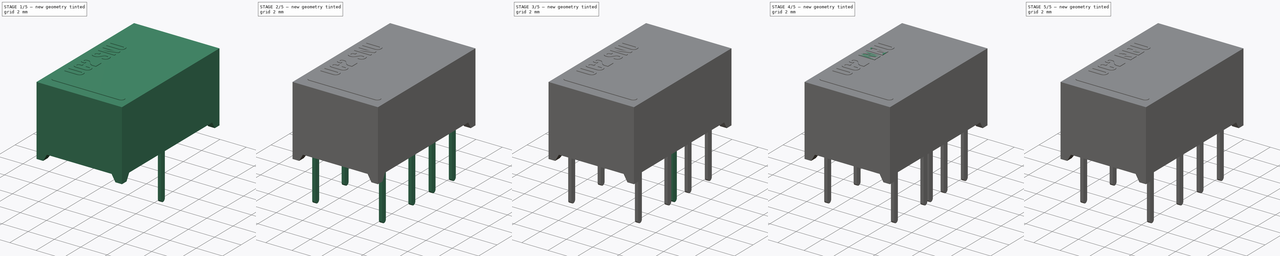
[diagram: build sequence overview — one tinted view per stage of 5, left to right]
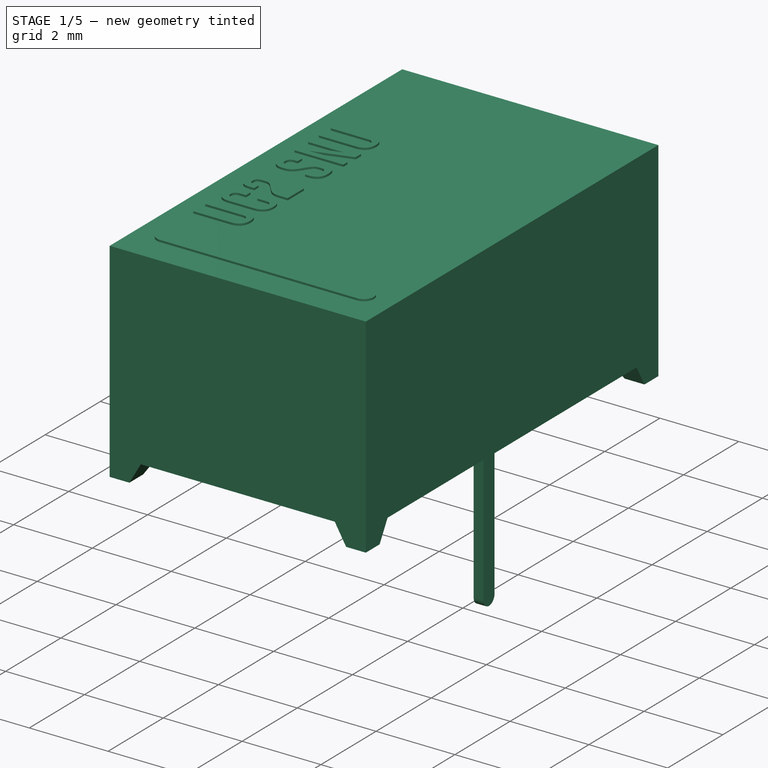
[diagram: stage 1 of 5 — iso view after this stage's code; geometry added in this stage tinted green]
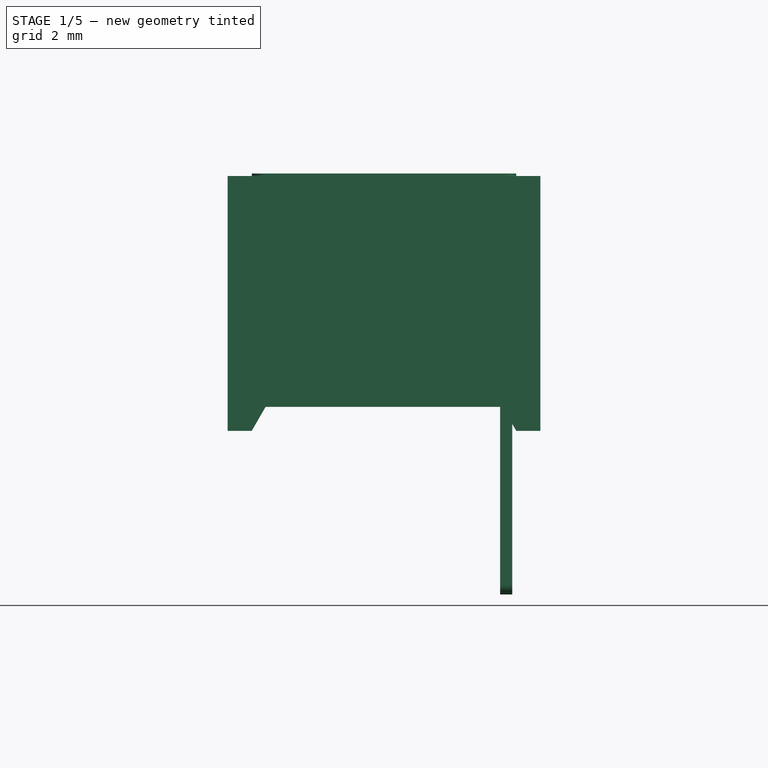
[diagram: stage 1 of 5 — front view after this stage's code; geometry added in this stage tinted green]
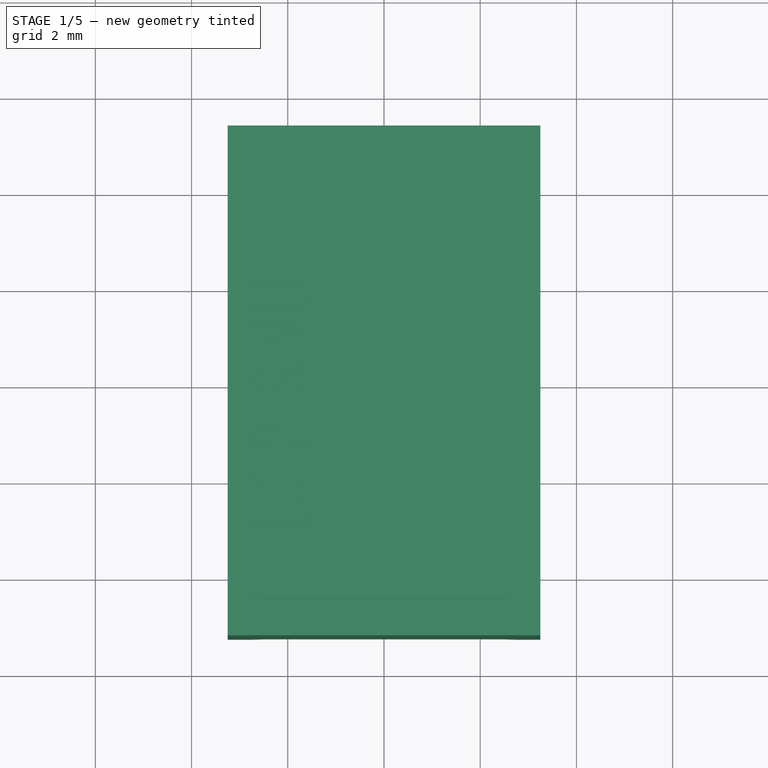
[diagram: stage 1 of 5 — top view after this stage's code; geometry added in this stage tinted green]
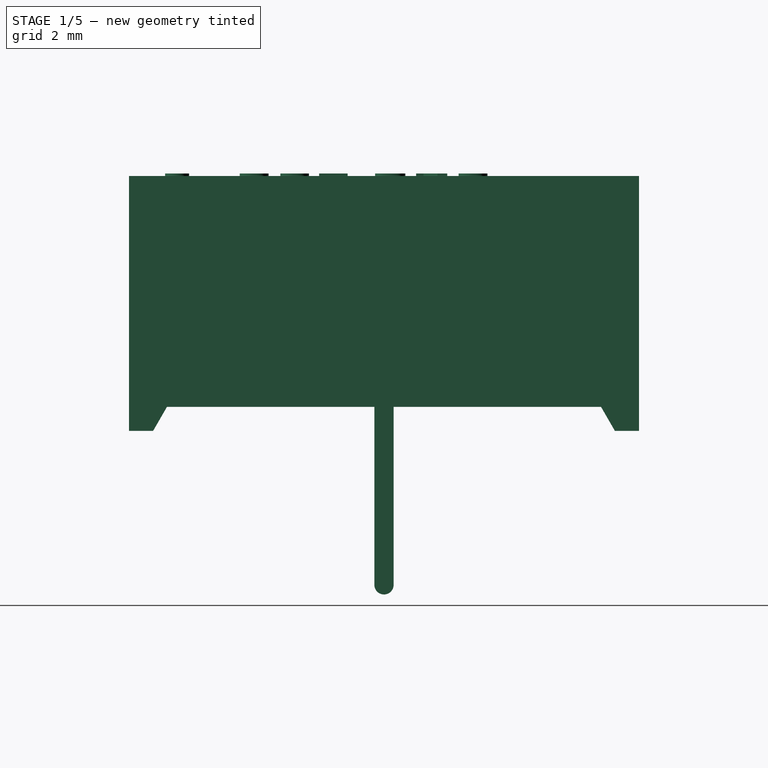
[diagram: stage 1 of 5 — right view after this stage's code; geometry added in this stage tinted green]
FCSTD DOCUMENT  (FreeCAD 0.19R16945 (Git))
Label: Kemet UC2 Series
License: All rights reserved
LicenseURL: http://en.wikipedia.org/wiki/All_rights_reserved
objects: Sketcher::SketchObject×21, PartDesign::Pad×15, PartDesign::Body×15, PartDesign::FeatureBase×12, PartDesign::Pocket×9, PartDesign::Mirrored×6, Part::FeaturePython×6, PartDesign::MultiTransform×3, Part::Part2DObjectPython×3, Part::MultiFuse×3, App::Part×3
note: 117 computed .brp shape members not serialized (recipe doc carries the construction recipe); baked Part::Feature solids carry a one-line shape summary decoded from their .brp

FEATURE [PartDesign::Body] Body005  label="UC2-NE_Body"
  Group = -> [Sketch019,Pad013,Sketch020,Pocket008,Sketch021,Pocket007,ShapeString001,Sketch025,Pocket009,MultiTransform001,Mirrored003,Mirrored002,Sketch022,Pad016,Sketch023,Pad014,Pad015]
  Origin = -> Origin008
  Tip = -> Pad015
FEATURE [App::Part] Part001  label="UC2-NE"
  Group = -> [Body005,Sketch024,Pad017,Body008,Body007,Body009,Body006,Array002,Array003,Fusion001]
  Origin = -> Origin007
FEATURE [PartDesign::Mirrored] Mirrored004
  MirrorPlane = -> YZ_Plane017
FEATURE [PartDesign::Mirrored] Mirrored005
  MirrorPlane = -> XZ_Plane015
FEATURE [Sketcher::SketchObject] Sketch026
  MapMode = 5
  Support = -> [XY_Plane016]
  sketch-geometry (4):
    g0: LineSegment StartX=3.25 StartY=-5.3 StartZ=0 EndX=-3.25 EndY=-5.3 EndZ=0
    g1: LineSegment StartX=-3.25 StartY=-5.3 StartZ=0 EndX=-3.25 EndY=5.3 EndZ=0
    g2: LineSegment StartX=-3.25 StartY=5.3 StartZ=0 EndX=3.25 EndY=5.3 EndZ=0
    g3: LineSegment StartX=3.25 StartY=5.3 StartZ=0 EndX=3.25 EndY=-5.3 EndZ=0
  constraints (10):
    c: Coincident(g0,g1)
    c: Coincident(g1,g2)
    c: Coincident(g2,g3)
    c: Coincident(g3,g0)
    c: Horizontal(g0)
    c: Vertical(g1)
    c: Symmetric(g1,g2,g-2)
    c: Symmetric(g2,g0,g-1)
    c: DistanceX(g2,g2) = 6.5
    c: DistanceY(g3,g3) = 10.6
FEATURE [PartDesign::Pad] Pad018  label="MainPad002"
  Length = 5.3
  Length2 = 100
  Profile = -> Sketch026
  Type = 0
FEATURE [Sketcher::SketchObject] Sketch029
  ExternalGeometry = -> [Pad018]
  MapMode = 5
  Placement = pos=(-3.25,0,0) rot=(0.57735,-0.57735,-0.57735;2.0944rad)
  Support = -> [Pad018]
  sketch-geometry (4):
    g0: LineSegment StartX=-4.8 StartY=0 StartZ=0 EndX=-4.51132 EndY=0.5 EndZ=0
    g1: LineSegment StartX=-4.51132 StartY=0.5 StartZ=0 EndX=4.51132 EndY=0.5 EndZ=0
    g2: LineSegment StartX=4.51132 StartY=0.5 StartZ=0 EndX=4.8 EndY=0 EndZ=0
    g3: LineSegment StartX=-4.8 StartY=0 StartZ=0 EndX=4.8 EndY=0 EndZ=0
  constraints (11):
    c: PointOnObject(g0,g-1)
    c: Coincident(g0,g1)
    c: Horizontal(g1)
    c: Coincident(g1,g2)
    c: Coincident(g3,g0)
    c: Coincident(g3,g2)
    c: DistanceY(g0,g0) = 0.5
    c: DistanceX(g-3,g0) = 0.5
    c: Symmetric(g2,g0,g-2)
    c: Angle(g3,g0) = 1.0472
    c: Equal(g2,g0)
FEATURE [PartDesign::Pocket] Pocket010  label="BottomPocket002"
  BaseFeature = -> Pad018
  Length = 5
  Length2 = 100
  Profile = -> Sketch029
  Refine = true
  Type = 1
FEATURE [Sketcher::SketchObject] Sketch030
  ExternalGeometry = -> [Pocket010]
  MapMode = 5
  Placement = pos=(0,-5.3,0) rot=(1,0,0;1.5708rad)
  Support = -> [Pocket010]
  sketch-geometry (4):
    g0: LineSegment StartX=-2.75 StartY=0 StartZ=0 EndX=-2.46132 EndY=0.5 EndZ=0
    g1: LineSegment StartX=-2.46132 StartY=0.5 StartZ=0 EndX=2.46132 EndY=0.5 EndZ=0
    g2: LineSegment StartX=2.46132 StartY=0.5 StartZ=0 EndX=2.75 EndY=0 EndZ=0
    g3: LineSegment StartX=2.75 StartY=0 StartZ=0 EndX=-2.75 EndY=0 EndZ=0
  constraints (11):
    c: PointOnObject(g0,g-1)
    c: Coincident(g0,g1)
    c: Coincident(g1,g2)
    c: Coincident(g2,g3)
    c: Coincident(g3,g0)
    c: Symmetric(g1,g0,g-2)
    c: Symmetric(g0,g2,g-2)
    c: DistanceX(g-3,g0) = 0.5
    c: Angle(g3,g0) = 1.0472
    c: Equal(g2,g0)
    c: DistanceY(g0,g0) = 0.5
FEATURE [PartDesign::Pocket] Pocket012  label="BottomSidePocket002"
  BaseFeature = -> Pocket010
  Length = 5
  Length2 = 100
  Profile = -> Sketch030
  Refine = true
  Type = 1
FEATURE [Sketcher::SketchObject] Sketch027
  ExternalGeometry = -> [Pocket012,Sketch030]
  MapMode = 5
  Placement = pos=(0,0,0.5) rot=(1,0,0;3.14159rad)
  Support = -> [Pocket012]
  sketch-geometry (6):
    g0: LineSegment StartX=0 StartY=0 StartZ=0 EndX=-3.05 EndY=0 EndZ=0
    g1: LineSegment StartX=-3.05 StartY=0 StartZ=0 EndX=-3.05 EndY=4.31132 EndZ=0
    g2: LineSegment StartX=-3.05 StartY=4.31132 StartZ=0 EndX=-2.26132 EndY=4.31132 EndZ=0
    g3: LineSegment StartX=-2.26132 StartY=4.31132 StartZ=0 EndX=-2.26132 EndY=5.1 EndZ=0
    g4: LineSegment StartX=-2.26132 StartY=5.1 StartZ=0 EndX=0 EndY=5.1 EndZ=0
    g5: LineSegment StartX=0 StartY=5.1 StartZ=0 EndX=0 EndY=0 EndZ=0
  constraints (17):
    c: Horizontal(g0)
    c: Coincident(g0,g1)
    c: Vertical(g1)
    c: Coincident(g1,g2)
    c: Coincident(g2,g3)
    c: Vertical(g3)
    c: Coincident(g3,g4)
    c: Horizontal(g4)
    c: Coincident(g4,g5)
    c: Coincident(g5,g0)
    c: Vertical(g5)
    c: Horizontal(g2)
    c: Coincident(g0,g-1)
    c: DistanceX(g-4,g0) = 0.2
    c: DistanceY(g4,g-6) = 0.2
    c: DistanceX(g-5,g3) = 0.2
    c: DistanceY(g1,g-4) = 0.2
FEATURE [PartDesign::Pocket] Pocket011
  BaseFeature = -> Pocket012
  Length = 0.1
  Length2 = 100
  Profile = -> Sketch027
  Type = 0
FEATURE [PartDesign::MultiTransform] MultiTransform002
  BaseFeature = -> Pocket011
  Originals = -> [Pocket011]
  Refine = true
  Transformations = -> [Mirrored004,Mirrored005]
FEATURE [Sketcher::SketchObject] Sketch028
  MapMode = 5
  Placement = pos=(-1e-16,-1e-16,0.6) rot=(1,0,0;3.14159rad)
  Support = -> [MultiTransform002]
  sketch-geometry (8):
    g0: LineSegment StartX=-1.13646 StartY=2.94894 StartZ=0 EndX=1.09204 EndY=2.88853 EndZ=0
    g1: LineSegment StartX=1.48768 StartY=2.48729 StartZ=0 EndX=1.5531 EndY=-2.52307 EndZ=0
    g2: LineSegment StartX=1.14644 StartY=-2.93509 StartZ=0 EndX=-1.14748 EndY=-2.93509 EndZ=0
    g3: LineSegment StartX=-1.55418 StartY=-2.52838 StartZ=0 EndX=-1.55418 EndY=2.54239 EndZ=0
    g4: ArcOfCircle CenterX=1.08102 CenterY=2.48198 CenterZ=0 NormalX=0 NormalY=0 NormalZ=1 AngleXU=0 Radius=0.406703 StartAngle=0.013056 EndAngle=1.54369
    g5: ArcOfCircle CenterX=-1.14748 CenterY=2.54239 CenterZ=0 NormalX=0 NormalY=0 NormalZ=1 AngleXU=0 Radius=0.406703 StartAngle=1.54369 EndAngle=3.14159
    g6: ArcOfCircle CenterX=-1.14748 CenterY=-2.52838 CenterZ=0 NormalX=0 NormalY=0 NormalZ=1 AngleXU=0 Radius=0.406703 StartAngle=3.14159 EndAngle=4.71239
    g7: ArcOfCircle CenterX=1.14644 CenterY=-2.52838 CenterZ=0 NormalX=0 NormalY=0 NormalZ=1 AngleXU=0 Radius=0.406703 StartAngle=4.71239 EndAngle=6.29624
  constraints (13):
    c: Horizontal(g2)
    c: Vertical(g3)
    c: Tangent(g0,g4) = 1.5708
    c: Tangent(g1,g4) = 1.5708
    c: Tangent(g0,g5) = 1.5708
    c: Tangent(g3,g5) = 1.5708
    c: Tangent(g2,g6) = 1.5708
    c: Tangent(g3,g6) = 1.5708
    c: Tangent(g1,g7) = 1.5708
    c: Tangent(g2,g7) = 1.5708
    c: Equal(g4,g5)
    c: Equal(g5,g6)
    c: Equal(g6,g7)
FEATURE [PartDesign::Pad] Pad022
  BaseFeature = -> MultiTransform002
  Length = 0.05
  Length2 = 100
  Profile = -> Sketch028
  Type = 0
FEATURE [Sketcher::SketchObject] Sketch031
  ExternalGeometry = -> [Pad022]
  MapMode = 5
  Placement = pos=(0,0,5.3) rot=(0,0,1;0rad)
  Support = -> [Pad022]
  sketch-geometry (4):
    g0: ArcOfCircle CenterX=-2.5 CenterY=-4.3 CenterZ=0 NormalX=0 NormalY=0 NormalZ=1 AngleXU=0 Radius=0.25 StartAngle=1.5708 EndAngle=4.71239
    g1: ArcOfCircle CenterX=2.5 CenterY=-4.3 CenterZ=0 NormalX=0 NormalY=0 NormalZ=1 AngleXU=0 Radius=0.25 StartAngle=4.71239 EndAngle=7.85398
    g2: LineSegment StartX=-2.5 StartY=-4.55 StartZ=0 EndX=2.5 EndY=-4.55 EndZ=0
    g3: LineSegment StartX=-2.5 StartY=-4.05 StartZ=0 EndX=2.5 EndY=-4.05 EndZ=0
  constraints (9):
    c: Tangent(g0,g3) = 1.5708
    c: Tangent(g0,g2) = -1.5708
    c: Tangent(g2,g1) = -1.5708
    c: Tangent(g3,g1) = 1.5708
    c: Horizontal(g2)
    c: Symmetric(g0,g1,g-2)
    c: DistanceY(g1,g1) = 0.5
    c: DistanceY(g-3,g1) = 1
    c: DistanceX(g1,g-3) = 0.75
FEATURE [PartDesign::Pad] Pad020
  BaseFeature = -> Pad022
  Length = 0.05
  Length2 = 100
  Profile = -> Sketch031
  Type = 0
FEATURE [Part::Part2DObjectPython] ShapeString002  # Draft 2D object (typed FeaturePython)
  AttachmentOffset = pos=(-1,-1,0) rot=(0,0,1;-1.5708rad)
  FontFile = <userpath>/Desktop/GitHub/freecad-projects/00-fonts/coolvetica condensed rg.ttf
  MapMode = 6
  Placement = pos=(-1.5,-3.05,5.3) rot=(0,0,-1;4.71239rad)
  Size = 0.75
  String = UC2 SNU
  Support = -> [Pad020]
  Tracking = 0.125
FEATURE [PartDesign::Pad] Pad019  label="ShapeStringPad002"
  BaseFeature = -> Pad020
  Length = 0.05
  Length2 = 100
  Profile = -> ShapeString002
  Type = 0
FEATURE [PartDesign::Body] Body011  label="UC2-SNU_Body"
  Group = -> [Sketch026,Pad018,Sketch029,Pocket010,Sketch030,Pocket012,ShapeString002,Sketch027,Pocket011,MultiTransform002,Mirrored004,Mirrored005,Sketch028,Pad022,Sketch031,Pad020,Pad019]
  Origin = -> Origin015
  Tip = -> Pad019
FEATURE [Sketcher::SketchObject] Sketch032
  AttachmentOffset = pos=(0,0,2.54) rot=(0,0,1;0rad)
  MapMode = 5
  Placement = pos=(2.54,-1e-15,1e-15) rot=(0.57735,0.57735,0.57735;2.0944rad)
  sketch-geometry (6):
    g0: ArcOfCircle CenterX=0 CenterY=-3.2 CenterZ=0 NormalX=0 NormalY=0 NormalZ=1 AngleXU=0 Radius=0.2 StartAngle=3.14159 EndAngle=6.28319
    g1: LineSegment StartX=-0.2 StartY=-3.2 StartZ=0 EndX=-0.2 EndY=0.5 EndZ=0
    g2: LineSegment StartX=-0.2 StartY=0.5 StartZ=0 EndX=0.2 EndY=0.5 EndZ=0
    g3: LineSegment StartX=0.2 StartY=0.5 StartZ=0 EndX=0.2 EndY=-3.2 EndZ=0
    g4: GeomPoint X=-0.2 Y=0 Z=0
    g5: GeomPoint X=0 Y=-3.4 Z=0
  constraints (16):
    c: Tangent(g0,g1) = 1.5708
    c: Coincident(g1,g2)
    c: Coincident(g2,g3)
    c: Coincident(g3,g0)
    c: Vertical(g3)
    c: Equal(g3,g1)
    c: Vertical(g1)
    c: Horizontal(g2)
    c: PointOnObject(g4,g1)
    c: PointOnObject(g4,g-1)
    c: DistanceY(g4,g1) = 0.5
    c: DistanceX(g0,g0) = 0.4
    c: PointOnObject(g5,g0)
    c: Vertical(g5,g0)
    c: DistanceY(g5,g-1) = 3.4
    c: PointOnObject(g0,g-2)
FEATURE [PartDesign::Pad] Pad021
  Length = 0.25
  Length2 = 100
  Midplane = true
  Placement = pos=(2.54,-1e-15,1e-15) rot=(0.57735,0.57735,0.57735;2.0944rad)
  Profile = -> Sketch032
  Reversed = true
  Type = 0
FEATURE [PartDesign::FeatureBase] Clone011
  BaseFeature = -> Pad021
  Placement = pos=(2.54,-1e-15,1e-15) rot=(0.57735,0.57735,0.57735;2.0944rad)
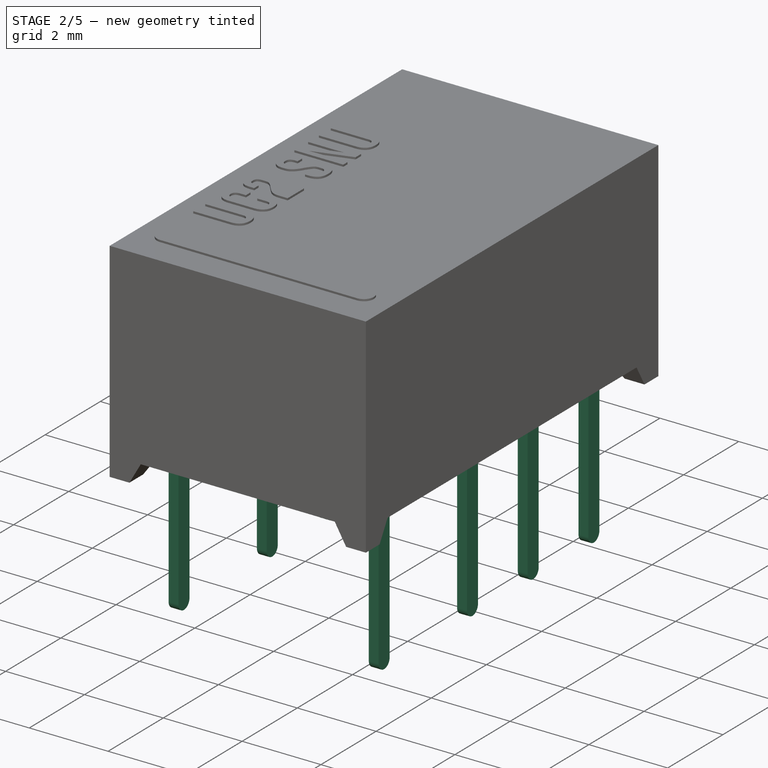
[diagram: stage 2 of 5 — iso view after this stage's code; geometry added in this stage tinted green]
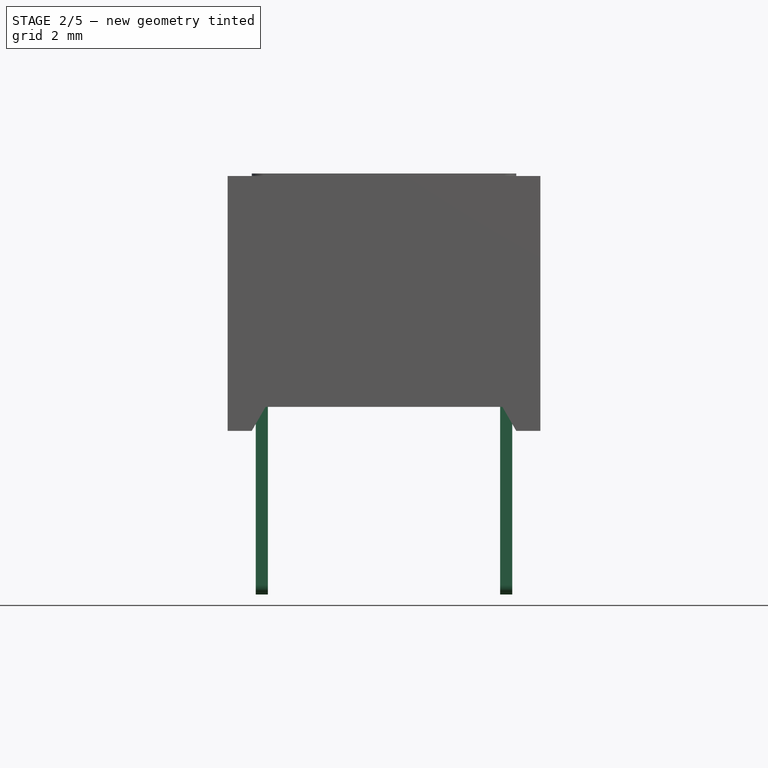
[diagram: stage 2 of 5 — front view after this stage's code; geometry added in this stage tinted green]
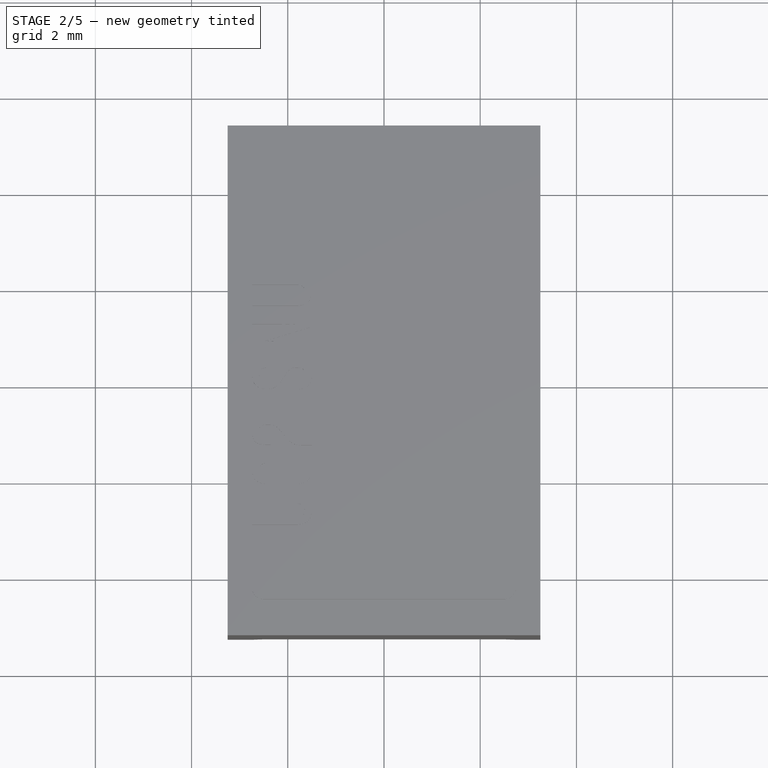
[diagram: stage 2 of 5 — top view after this stage's code; geometry added in this stage tinted green]
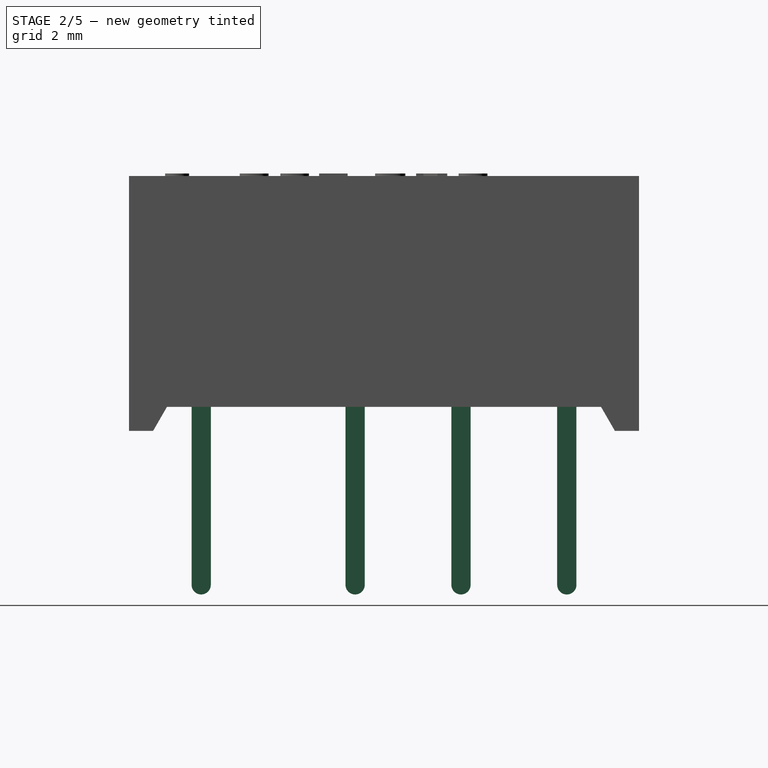
[diagram: stage 2 of 5 — right view after this stage's code; geometry added in this stage tinted green]
FEATURE [App::Part] Part  label="UC2-NU"
  Group = -> [Body,Sketch009,Pad005,Body001,Body002,Body003,Body004,Array,Array001,Fusion]
  Origin = -> Origin001
FEATURE [Sketcher::SketchObject] Sketch019
  MapMode = 5
  Support = -> [XY_Plane008]
  sketch-geometry (4):
    g0: LineSegment StartX=3.25 StartY=-5.3 StartZ=0 EndX=-3.25 EndY=-5.3 EndZ=0
    g1: LineSegment StartX=-3.25 StartY=-5.3 StartZ=0 EndX=-3.25 EndY=5.3 EndZ=0
    g2: LineSegment StartX=-3.25 StartY=5.3 StartZ=0 EndX=3.25 EndY=5.3 EndZ=0
    g3: LineSegment StartX=3.25 StartY=5.3 StartZ=0 EndX=3.25 EndY=-5.3 EndZ=0
  constraints (10):
    c: Coincident(g0,g1)
    c: Coincident(g1,g2)
    c: Coincident(g2,g3)
    c: Coincident(g3,g0)
    c: Horizontal(g0)
    c: Vertical(g1)
    c: Symmetric(g1,g2,g-2)
    c: Symmetric(g2,g0,g-1)
    c: DistanceX(g2,g2) = 6.5
    c: DistanceY(g3,g3) = 10.6
FEATURE [PartDesign::Pad] Pad013  label="MainPad001"
  Length = 5.3
  Length2 = 100
  Profile = -> Sketch019
  Type = 0
FEATURE [Sketcher::SketchObject] Sketch020
  ExternalGeometry = -> [Pad013]
  MapMode = 5
  Placement = pos=(-3.25,0,0) rot=(0.57735,-0.57735,-0.57735;2.0944rad)
  Support = -> [Pad013]
  sketch-geometry (4):
    g0: LineSegment StartX=-4.8 StartY=0 StartZ=0 EndX=-4.51132 EndY=0.5 EndZ=0
    g1: LineSegment StartX=-4.51132 StartY=0.5 StartZ=0 EndX=4.51132 EndY=0.5 EndZ=0
    g2: LineSegment StartX=4.51132 StartY=0.5 StartZ=0 EndX=4.8 EndY=0 EndZ=0
    g3: LineSegment StartX=-4.8 StartY=0 StartZ=0 EndX=4.8 EndY=0 EndZ=0
  constraints (11):
    c: PointOnObject(g0,g-1)
    c: Coincident(g0,g1)
    c: Horizontal(g1)
    c: Coincident(g1,g2)
    c: Coincident(g3,g0)
    c: Coincident(g3,g2)
    c: DistanceY(g0,g0) = 0.5
    c: DistanceX(g-3,g0) = 0.5
    c: Symmetric(g2,g0,g-2)
    c: Angle(g3,g0) = 1.0472
    c: Equal(g2,g0)
FEATURE [PartDesign::Pocket] Pocket008  label="BottomPocket001"
  BaseFeature = -> Pad013
  Length = 5
  Length2 = 100
  Profile = -> Sketch020
  Refine = true
  Type = 1
FEATURE [Sketcher::SketchObject] Sketch021
  ExternalGeometry = -> [Pocket008]
  MapMode = 5
  Placement = pos=(0,-5.3,0) rot=(1,0,0;1.5708rad)
  Support = -> [Pocket008]
  sketch-geometry (4):
    g0: LineSegment StartX=-2.75 StartY=0 StartZ=0 EndX=-2.46132 EndY=0.5 EndZ=0
    g1: LineSegment StartX=-2.46132 StartY=0.5 StartZ=0 EndX=2.46132 EndY=0.5 EndZ=0
    g2: LineSegment StartX=2.46132 StartY=0.5 StartZ=0 EndX=2.75 EndY=0 EndZ=0
    g3: LineSegment StartX=2.75 StartY=0 StartZ=0 EndX=-2.75 EndY=0 EndZ=0
  constraints (11):
    c: PointOnObject(g0,g-1)
    c: Coincident(g0,g1)
    c: Coincident(g1,g2)
    c: Coincident(g2,g3)
    c: Coincident(g3,g0)
    c: Symmetric(g1,g0,g-2)
    c: Symmetric(g0,g2,g-2)
    c: DistanceX(g-3,g0) = 0.5
    c: Angle(g3,g0) = 1.0472
    c: Equal(g2,g0)
    c: DistanceY(g0,g0) = 0.5
FEATURE [PartDesign::Pocket] Pocket007  label="BottomSidePocket001"
  BaseFeature = -> Pocket008
  Length = 5
  Length2 = 100
  Profile = -> Sketch021
  Refine = true
  Type = 1
FEATURE [PartDesign::FeatureBase] Clone008
  BaseFeature = -> Pad021
  Placement = pos=(2.54,-1e-15,1e-15) rot=(0.57735,0.57735,0.57735;2.0944rad)
FEATURE [PartDesign::Body] Body013
  BaseFeature = -> Pad021
  Group = -> [Clone008]
  Origin = -> Origin012
  Placement = pos=(-5.08,-3.8,0) rot=(0,0,1;0rad)
  Tip = -> Clone008
FEATURE [PartDesign::FeatureBase] Clone009
  BaseFeature = -> Pad021
  Placement = pos=(2.54,-1e-15,1e-15) rot=(0.57735,0.57735,0.57735;2.0944rad)
FEATURE [PartDesign::Body] Body012
  BaseFeature = -> Pad021
  Group = -> [Clone009]
  Origin = -> Origin014
  Placement = pos=(-5.08,-0.6,0) rot=(0,0,1;0rad)
  Tip = -> Clone009
FEATURE [Part::FeaturePython] Array005  # Draft array (typed FeaturePython)
  Angle = 360
  ArrayType = 0
  Axis = (0,0,1)
  Base = -> Body012
  Center = (0,0,0)
  Fuse = false
  IntervalAxis = (0,0,0)
  IntervalX = (1,0,0)
  IntervalY = (0,2.2,0)
  IntervalZ = (0,0,1)
  NumberPolar = 1
  NumberX = 1
  NumberY = 3
  NumberZ = 1
FEATURE [PartDesign::FeatureBase] Clone010
  BaseFeature = -> Pad021
  Placement = pos=(2.54,-1e-15,1e-15) rot=(0.57735,0.57735,0.57735;2.0944rad)
FEATURE [PartDesign::Body] Body014
  BaseFeature = -> Pad021
  Group = -> [Clone010]
  Origin = -> Origin013
  Placement = pos=(0,-0.6,0) rot=(0,0,1;0rad)
  Tip = -> Clone010
FEATURE [Part::FeaturePython] Array004  # Draft array (typed FeaturePython)
  Angle = 360
  ArrayType = 0
  Axis = (0,0,1)
  Base = -> Body014
  Center = (0,0,0)
  Fuse = false
  IntervalAxis = (0,0,0)
  IntervalX = (1,0,0)
  IntervalY = (0,2.2,0)
  IntervalZ = (0,0,1)
  NumberPolar = 1
  NumberX = 1
  NumberY = 3
  NumberZ = 1
FEATURE [PartDesign::Body] Body010
  BaseFeature = -> Pad021
  Group = -> [Clone011]
  Origin = -> Origin016
  Placement = pos=(0,-3.8,0) rot=(0,0,1;0rad)
  Tip = -> Clone011
FEATURE [Part::MultiFuse] Fusion002  label="UC2-SNU_Pins"
  Shapes = -> [Array005,Body013,Array004,Body010]
FEATURE [App::Part] Part002  label="UC2-SNU"
  Group = -> [Body011,Sketch032,Pad021,Body010,Body013,Body014,Body012,Array004,Array005,Fusion002]
  Origin = -> Origin017
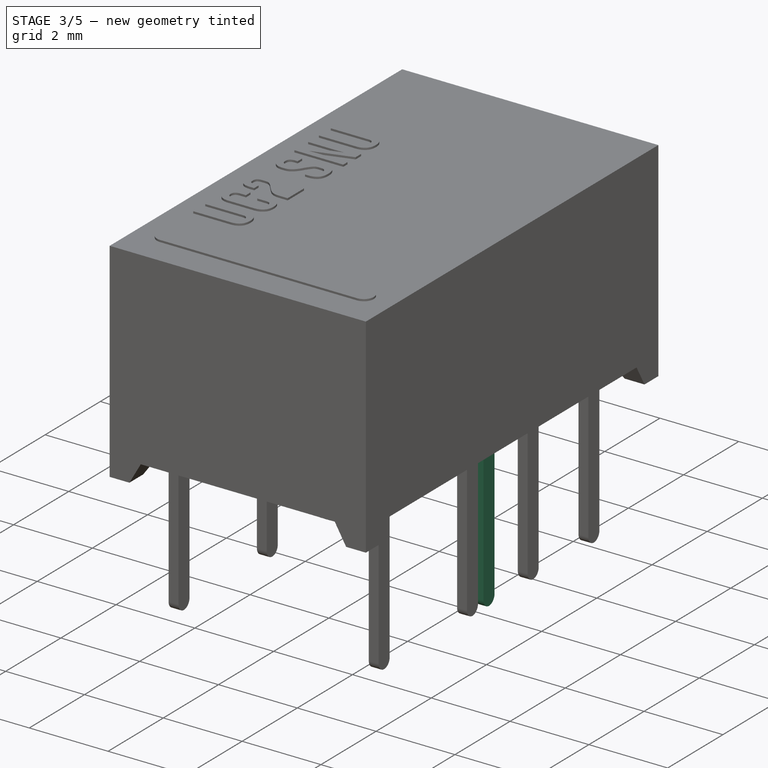
[diagram: stage 3 of 5 — iso view after this stage's code; geometry added in this stage tinted green]
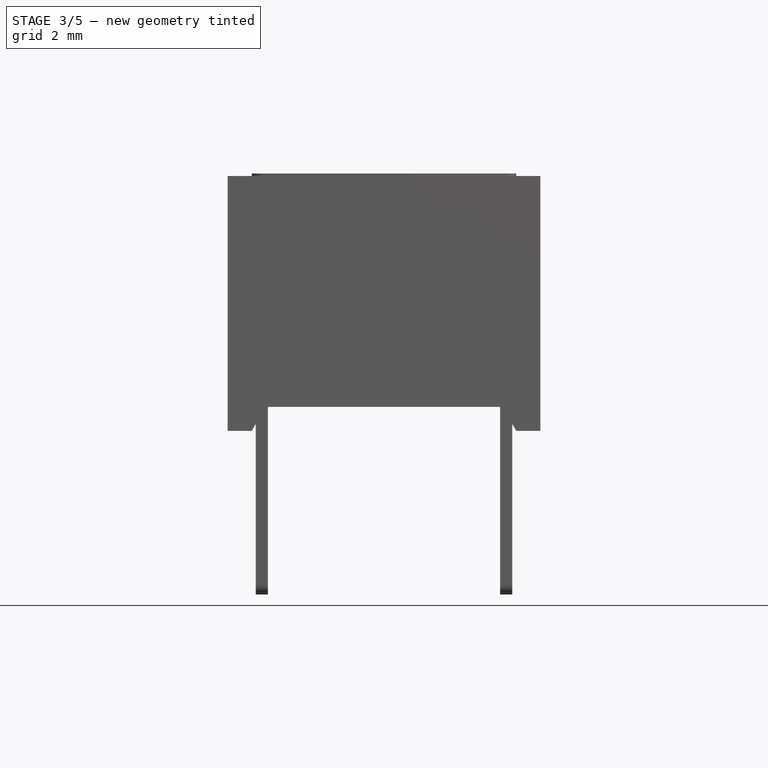
[diagram: stage 3 of 5 — front view after this stage's code; geometry added in this stage tinted green]
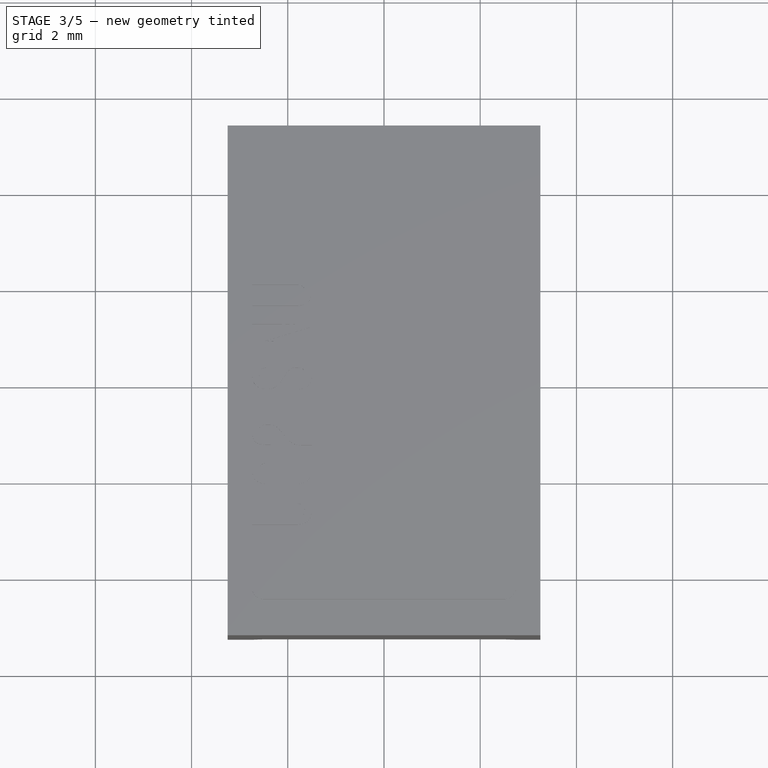
[diagram: stage 3 of 5 — top view after this stage's code; geometry added in this stage tinted green]
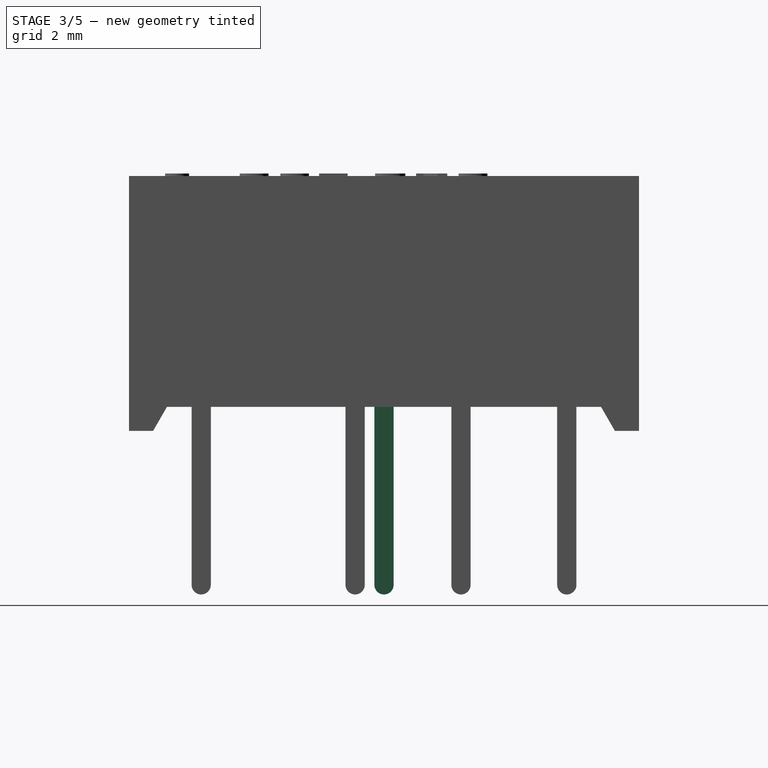
[diagram: stage 3 of 5 — right view after this stage's code; geometry added in this stage tinted green]
FEATURE [Sketcher::SketchObject] Sketch024
  AttachmentOffset = pos=(0,0,2.54) rot=(0,0,1;0rad)
  MapMode = 5
  Placement = pos=(2.54,-1e-15,1e-15) rot=(0.57735,0.57735,0.57735;2.0944rad)
  sketch-geometry (6):
    g0: ArcOfCircle CenterX=0 CenterY=-3.2 CenterZ=0 NormalX=0 NormalY=0 NormalZ=1 AngleXU=0 Radius=0.2 StartAngle=3.14159 EndAngle=6.28319
    g1: LineSegment StartX=-0.2 StartY=-3.2 StartZ=0 EndX=-0.2 EndY=0.5 EndZ=0
    g2: LineSegment StartX=-0.2 StartY=0.5 StartZ=0 EndX=0.2 EndY=0.5 EndZ=0
    g3: LineSegment StartX=0.2 StartY=0.5 StartZ=0 EndX=0.2 EndY=-3.2 EndZ=0
    g4: GeomPoint X=-0.2 Y=0 Z=0
    g5: GeomPoint X=0 Y=-3.4 Z=0
  constraints (16):
    c: Tangent(g0,g1) = 1.5708
    c: Coincident(g1,g2)
    c: Coincident(g2,g3)
    c: Coincident(g3,g0)
    c: Vertical(g3)
    c: Equal(g3,g1)
    c: Vertical(g1)
    c: Horizontal(g2)
    c: PointOnObject(g4,g1)
    c: PointOnObject(g4,g-1)
    c: DistanceY(g4,g1) = 0.5
    c: DistanceX(g0,g0) = 0.4
    c: PointOnObject(g5,g0)
    c: Vertical(g5,g0)
    c: DistanceY(g5,g-1) = 3.4
    c: PointOnObject(g0,g-2)
FEATURE [PartDesign::Pad] Pad017
  Length = 0.25
  Length2 = 100
  Midplane = true
  Placement = pos=(2.54,-1e-15,1e-15) rot=(0.57735,0.57735,0.57735;2.0944rad)
  Profile = -> Sketch024
  Reversed = true
  Type = 0
FEATURE [PartDesign::FeatureBase] Clone004
  BaseFeature = -> Pad017
  Placement = pos=(2.54,-1e-15,1e-15) rot=(0.57735,0.57735,0.57735;2.0944rad)
FEATURE [PartDesign::FeatureBase] Clone005
  BaseFeature = -> Pad017
  Placement = pos=(2.54,-1e-15,1e-15) rot=(0.57735,0.57735,0.57735;2.0944rad)
FEATURE [PartDesign::FeatureBase] Clone006
  BaseFeature = -> Pad017
  Placement = pos=(2.54,-1e-15,1e-15) rot=(0.57735,0.57735,0.57735;2.0944rad)
FEATURE [PartDesign::Body] Body006
  BaseFeature = -> Pad017
  Group = -> [Clone006]
  Origin = -> Origin010
  Placement = pos=(-5.08,-0.6,0) rot=(0,0,1;0rad)
  Tip = -> Clone006
FEATURE [Part::FeaturePython] Array003  # Draft array (typed FeaturePython)
  Angle = 360
  ArrayType = 0
  Axis = (0,0,1)
  Base = -> Body006
  Center = (0,0,0)
  Fuse = false
  IntervalAxis = (0,0,0)
  IntervalX = (1,0,0)
  IntervalY = (0,2.2,0)
  IntervalZ = (0,0,1)
  NumberPolar = 1
  NumberX = 1
  NumberY = 3
  NumberZ = 1
FEATURE [PartDesign::FeatureBase] Clone007
  BaseFeature = -> Pad017
  Placement = pos=(2.54,-1e-15,1e-15) rot=(0.57735,0.57735,0.57735;2.0944rad)
FEATURE [Sketcher::SketchObject] Sketch025
  ExternalGeometry = -> [Pocket007,Sketch021]
  MapMode = 5
  Placement = pos=(0,0,0.5) rot=(1,0,0;3.14159rad)
  Support = -> [Pocket007]
  sketch-geometry (6):
    g0: LineSegment StartX=0 StartY=0 StartZ=0 EndX=-3.05 EndY=0 EndZ=0
    g1: LineSegment StartX=-3.05 StartY=0 StartZ=0 EndX=-3.05 EndY=4.31132 EndZ=0
    g2: LineSegment StartX=-3.05 StartY=4.31132 StartZ=0 EndX=-2.26132 EndY=4.31132 EndZ=0
    g3: LineSegment StartX=-2.26132 StartY=4.31132 StartZ=0 EndX=-2.26132 EndY=5.1 EndZ=0
    g4: LineSegment StartX=-2.26132 StartY=5.1 StartZ=0 EndX=0 EndY=5.1 EndZ=0
    g5: LineSegment StartX=0 StartY=5.1 StartZ=0 EndX=0 EndY=0 EndZ=0
  constraints (17):
    c: Horizontal(g0)
    c: Coincident(g0,g1)
    c: Vertical(g1)
    c: Coincident(g1,g2)
    c: Coincident(g2,g3)
    c: Vertical(g3)
    c: Coincident(g3,g4)
    c: Horizontal(g4)
    c: Coincident(g4,g5)
    c: Coincident(g5,g0)
    c: Vertical(g5)
    c: Horizontal(g2)
    c: Coincident(g0,g-1)
    c: DistanceX(g-4,g0) = 0.2
    c: DistanceY(g4,g-6) = 0.2
    c: DistanceX(g-5,g3) = 0.2
    c: DistanceY(g1,g-4) = 0.2
FEATURE [PartDesign::Pocket] Pocket009
  BaseFeature = -> Pocket007
  Length = 0.1
  Length2 = 100
  Profile = -> Sketch025
  Type = 0
FEATURE [PartDesign::Mirrored] Mirrored002
  MirrorPlane = -> XZ_Plane008
FEATURE [PartDesign::Mirrored] Mirrored003
  MirrorPlane = -> YZ_Plane008
FEATURE [PartDesign::MultiTransform] MultiTransform001
  BaseFeature = -> Pocket009
  Originals = -> [Pocket009]
  Refine = true
  Transformations = -> [Mirrored003,Mirrored002]
FEATURE [Sketcher::SketchObject] Sketch022
  MapMode = 5
  Placement = pos=(-1e-16,-1e-16,0.6) rot=(1,0,0;3.14159rad)
  Support = -> [MultiTransform001]
  sketch-geometry (8):
    g0: LineSegment StartX=-1.13646 StartY=2.94894 StartZ=0 EndX=1.09204 EndY=2.88853 EndZ=0
    g1: LineSegment StartX=1.48768 StartY=2.48729 StartZ=0 EndX=1.5531 EndY=-2.52307 EndZ=0
    g2: LineSegment StartX=1.14644 StartY=-2.93509 StartZ=0 EndX=-1.14748 EndY=-2.93509 EndZ=0
    g3: LineSegment StartX=-1.55418 StartY=-2.52838 StartZ=0 EndX=-1.55418 EndY=2.54239 EndZ=0
    g4: ArcOfCircle CenterX=1.08102 CenterY=2.48198 CenterZ=0 NormalX=0 NormalY=0 NormalZ=1 AngleXU=0 Radius=0.406703 StartAngle=0.013056 EndAngle=1.54369
    g5: ArcOfCircle CenterX=-1.14748 CenterY=2.54239 CenterZ=0 NormalX=0 NormalY=0 NormalZ=1 AngleXU=0 Radius=0.406703 StartAngle=1.54369 EndAngle=3.14159
    g6: ArcOfCircle CenterX=-1.14748 CenterY=-2.52838 CenterZ=0 NormalX=0 NormalY=0 NormalZ=1 AngleXU=0 Radius=0.406703 StartAngle=3.14159 EndAngle=4.71239
    g7: ArcOfCircle CenterX=1.14644 CenterY=-2.52838 CenterZ=0 NormalX=0 NormalY=0 NormalZ=1 AngleXU=0 Radius=0.406703 StartAngle=4.71239 EndAngle=6.29624
  constraints (13):
    c: Horizontal(g2)
    c: Vertical(g3)
    c: Tangent(g0,g4) = 1.5708
    c: Tangent(g1,g4) = 1.5708
    c: Tangent(g0,g5) = 1.5708
    c: Tangent(g3,g5) = 1.5708
    c: Tangent(g2,g6) = 1.5708
    c: Tangent(g3,g6) = 1.5708
    c: Tangent(g1,g7) = 1.5708
    c: Tangent(g2,g7) = 1.5708
    c: Equal(g4,g5)
    c: Equal(g5,g6)
    c: Equal(g6,g7)
FEATURE [PartDesign::Pad] Pad016
  BaseFeature = -> MultiTransform001
  Length = 0.05
  Length2 = 100
  Profile = -> Sketch022
  Type = 0
FEATURE [Sketcher::SketchObject] Sketch023
  ExternalGeometry = -> [Pad016]
  MapMode = 5
  Placement = pos=(0,0,5.3) rot=(0,0,1;0rad)
  Support = -> [Pad016]
  sketch-geometry (4):
    g0: ArcOfCircle CenterX=-2.5 CenterY=-4.3 CenterZ=0 NormalX=0 NormalY=0 NormalZ=1 AngleXU=0 Radius=0.25 StartAngle=1.5708 EndAngle=4.71239
    g1: ArcOfCircle CenterX=2.5 CenterY=-4.3 CenterZ=0 NormalX=0 NormalY=0 NormalZ=1 AngleXU=0 Radius=0.25 StartAngle=4.71239 EndAngle=7.85398
    g2: LineSegment StartX=-2.5 StartY=-4.55 StartZ=0 EndX=2.5 EndY=-4.55 EndZ=0
    g3: LineSegment StartX=-2.5 StartY=-4.05 StartZ=0 EndX=2.5 EndY=-4.05 EndZ=0
  constraints (9):
    c: Tangent(g0,g3) = 1.5708
    c: Tangent(g0,g2) = -1.5708
    c: Tangent(g2,g1) = -1.5708
    c: Tangent(g3,g1) = 1.5708
    c: Horizontal(g2)
    c: Symmetric(g0,g1,g-2)
    c: DistanceY(g1,g1) = 0.5
    c: DistanceY(g-3,g1) = 1
    c: DistanceX(g1,g-3) = 0.75
FEATURE [PartDesign::Pad] Pad014
  BaseFeature = -> Pad016
  Length = 0.05
  Length2 = 100
  Profile = -> Sketch023
  Type = 0
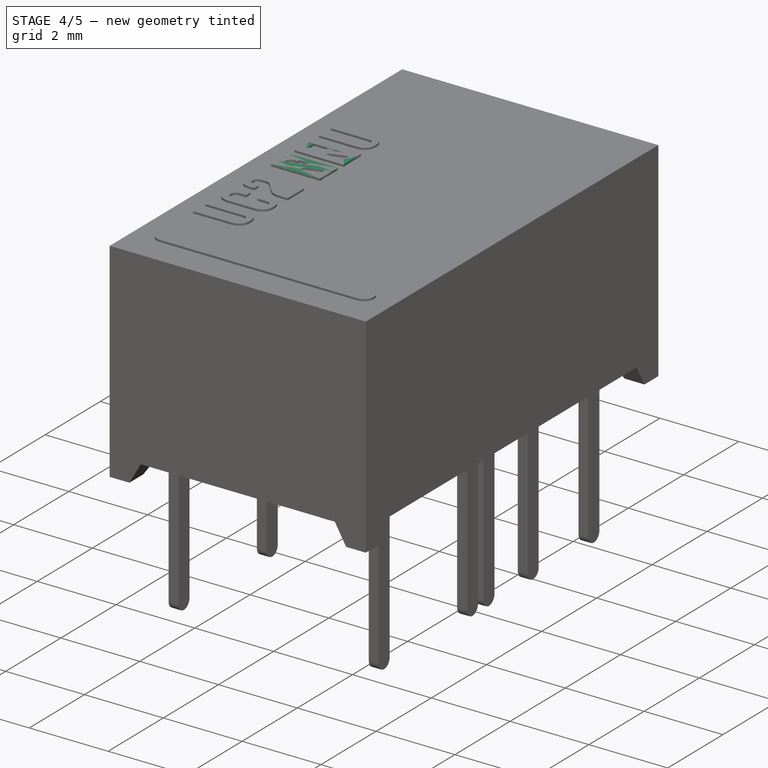
[diagram: stage 4 of 5 — iso view after this stage's code; geometry added in this stage tinted green]
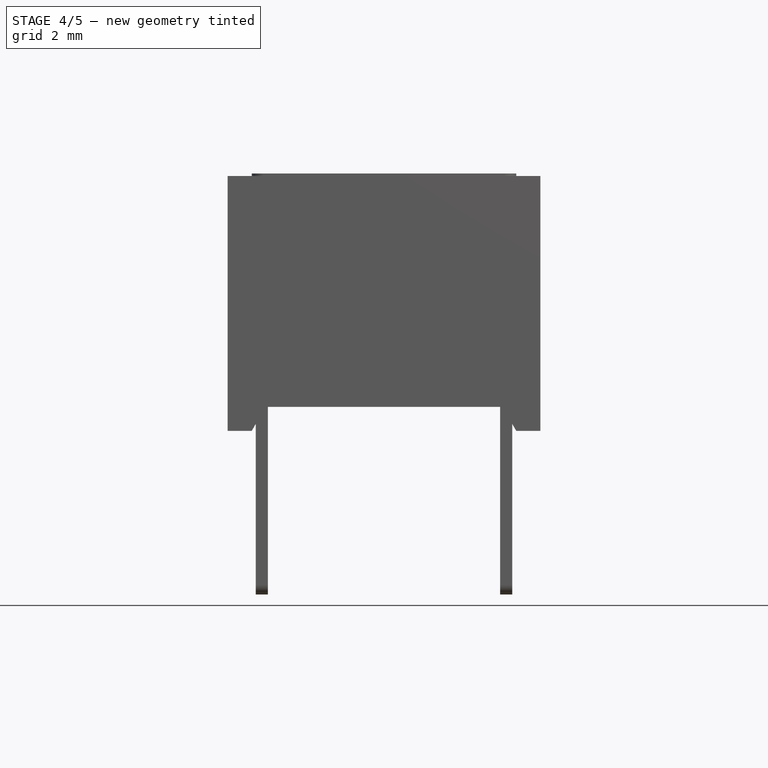
[diagram: stage 4 of 5 — front view after this stage's code; geometry added in this stage tinted green]
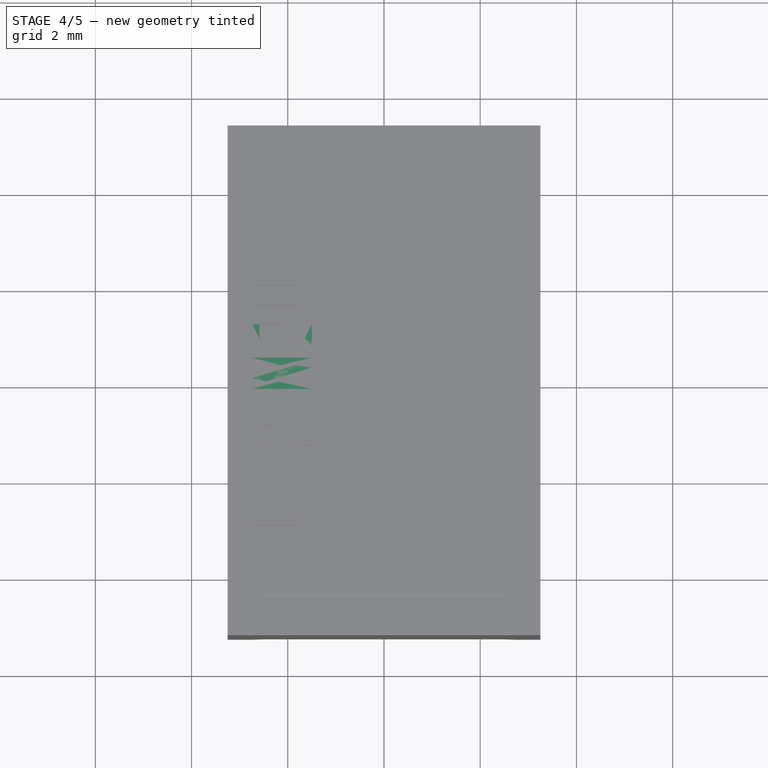
[diagram: stage 4 of 5 — top view after this stage's code; geometry added in this stage tinted green]
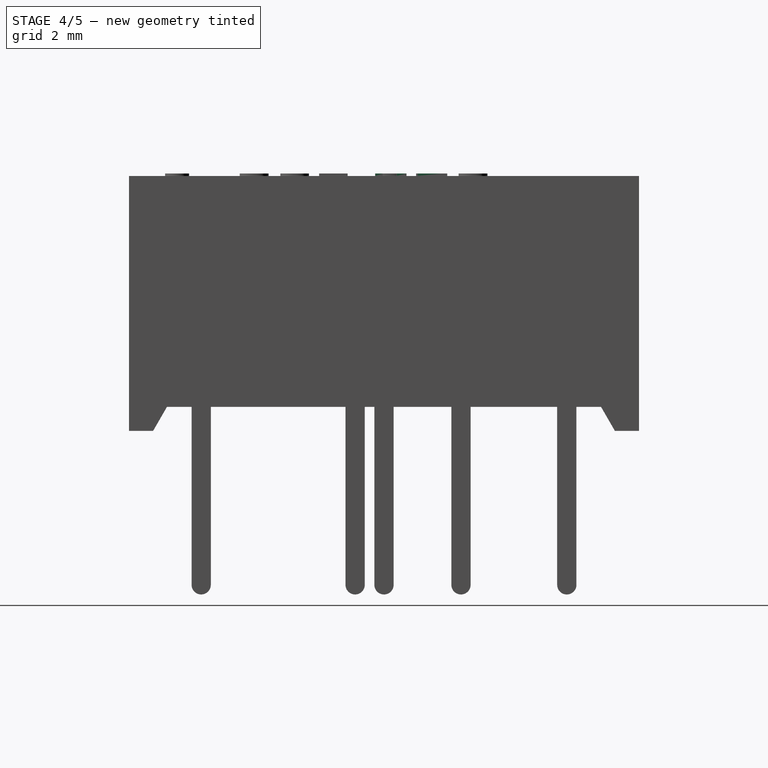
[diagram: stage 4 of 5 — right view after this stage's code; geometry added in this stage tinted green]
FEATURE [Sketcher::SketchObject] Sketch009
  AttachmentOffset = pos=(0,0,2.54) rot=(0,0,1;0rad)
  MapMode = 5
  Placement = pos=(2.54,-1e-15,1e-15) rot=(0.57735,0.57735,0.57735;2.0944rad)
  sketch-geometry (6):
    g0: ArcOfCircle CenterX=0 CenterY=-3.2 CenterZ=0 NormalX=0 NormalY=0 NormalZ=1 AngleXU=0 Radius=0.2 StartAngle=3.14159 EndAngle=6.28319
    g1: LineSegment StartX=-0.2 StartY=-3.2 StartZ=0 EndX=-0.2 EndY=0.5 EndZ=0
    g2: LineSegment StartX=-0.2 StartY=0.5 StartZ=0 EndX=0.2 EndY=0.5 EndZ=0
    g3: LineSegment StartX=0.2 StartY=0.5 StartZ=0 EndX=0.2 EndY=-3.2 EndZ=0
    g4: GeomPoint X=-0.2 Y=0 Z=0
    g5: GeomPoint X=0 Y=-3.4 Z=0
  constraints (16):
    c: Tangent(g0,g1) = 1.5708
    c: Coincident(g1,g2)
    c: Coincident(g2,g3)
    c: Coincident(g3,g0)
    c: Vertical(g3)
    c: Equal(g3,g1)
    c: Vertical(g1)
    c: Horizontal(g2)
    c: PointOnObject(g4,g1)
    c: PointOnObject(g4,g-1)
    c: DistanceY(g4,g1) = 0.5
    c: DistanceX(g0,g0) = 0.4
    c: PointOnObject(g5,g0)
    c: Vertical(g5,g0)
    c: DistanceY(g5,g-1) = 3.4
    c: PointOnObject(g0,g-2)
FEATURE [PartDesign::Pad] Pad005
  Length = 0.25
  Length2 = 100
  Midplane = true
  Placement = pos=(2.54,-1e-15,1e-15) rot=(0.57735,0.57735,0.57735;2.0944rad)
  Profile = -> Sketch009
  Reversed = true
  Type = 0
FEATURE [PartDesign::Body] Body001
  BaseFeature = -> Pad005
  Group = -> [Clone]
  Origin = -> Origin002
  Placement = pos=(0,-3.8,0) rot=(0,0,1;0rad)
  Tip = -> Clone
FEATURE [PartDesign::FeatureBase] Clone001
  BaseFeature = -> Pad005
  Placement = pos=(2.54,-1e-15,1e-15) rot=(0.57735,0.57735,0.57735;2.0944rad)
FEATURE [PartDesign::Body] Body002
  BaseFeature = -> Pad005
  Group = -> [Clone001]
  Origin = -> Origin003
  Placement = pos=(-5.08,-3.8,0) rot=(0,0,1;0rad)
  Tip = -> Clone001
FEATURE [PartDesign::FeatureBase] Clone002
  BaseFeature = -> Pad005
  Placement = pos=(2.54,-1e-15,1e-15) rot=(0.57735,0.57735,0.57735;2.0944rad)
FEATURE [PartDesign::Body] Body003
  BaseFeature = -> Pad005
  Group = -> [Clone002]
  Origin = -> Origin004
  Placement = pos=(0,-0.6,0) rot=(0,0,1;0rad)
  Tip = -> Clone002
FEATURE [PartDesign::FeatureBase] Clone003
  BaseFeature = -> Pad005
  Placement = pos=(2.54,-1e-15,1e-15) rot=(0.57735,0.57735,0.57735;2.0944rad)
FEATURE [PartDesign::Body] Body004
  BaseFeature = -> Pad005
  Group = -> [Clone003]
  Origin = -> Origin005
  Placement = pos=(-5.08,-0.6,0) rot=(0,0,1;0rad)
  Tip = -> Clone003
FEATURE [Part::FeaturePython] Array  # Draft array (typed FeaturePython)
  Angle = 360
  ArrayType = 0
  Axis = (0,0,1)
  Base = -> Body003
  Center = (0,0,0)
  Fuse = false
  IntervalAxis = (0,0,0)
  IntervalX = (1,0,0)
  IntervalY = (0,2.2,0)
  IntervalZ = (0,0,1)
  NumberPolar = 1
  NumberX = 1
  NumberY = 3
  NumberZ = 1
FEATURE [Part::FeaturePython] Array001  # Draft array (typed FeaturePython)
  Angle = 360
  ArrayType = 0
  Axis = (0,0,1)
  Base = -> Body004
  Center = (0,0,0)
  Fuse = false
  IntervalAxis = (0,0,0)
  IntervalX = (1,0,0)
  IntervalY = (0,2.2,0)
  IntervalZ = (0,0,1)
  NumberPolar = 1
  NumberX = 1
  NumberY = 3
  NumberZ = 1
FEATURE [PartDesign::Body] Body008
  Group = -> [Clone005]
  Origin = -> Origin009
  Placement = pos=(0,-3.8,0) rot=(0,0,1;0rad)
  Tip = -> Clone005
FEATURE [PartDesign::Body] Body009
  Group = -> [Clone004]
  Origin = -> Origin006
  Placement = pos=(0,-0.6,0) rot=(0,0,1;0rad)
  Tip = -> Clone004
FEATURE [Part::FeaturePython] Array002  # Draft array (typed FeaturePython)
  Angle = 360
  ArrayType = 0
  Axis = (0,0,1)
  Base = -> Body009
  Center = (0,0,0)
  Fuse = false
  IntervalAxis = (0,0,0)
  IntervalX = (1,0,0)
  IntervalY = (0,2.2,0)
  IntervalZ = (0,0,1)
  NumberPolar = 1
  NumberX = 1
  NumberY = 3
  NumberZ = 1
FEATURE [PartDesign::Body] Body007
  BaseFeature = -> Pad017
  Group = -> [Clone007]
  Origin = -> Origin011
  Placement = pos=(-5.08,-3.8,0) rot=(0,0,1;0rad)
  Tip = -> Clone007
FEATURE [Part::MultiFuse] Fusion001  label="UC2-NE_Pins"
  Shapes = -> [Array003,Body007,Array002,Body008]
FEATURE [Part::Part2DObjectPython] ShapeString001  # Draft 2D object (typed FeaturePython)
  AttachmentOffset = pos=(-1,-1,0) rot=(0,0,1;-1.5708rad)
  FontFile = <userpath>/Desktop/GitHub/freecad-projects/00-fonts/coolvetica condensed rg.ttf
  MapMode = 6
  Placement = pos=(-1.5,-3.05,5.3) rot=(0,0,-1;4.71239rad)
  Size = 0.75
  String = UC2 NE
  Support = -> [Pad014]
  Tracking = 0.125
FEATURE [PartDesign::Pad] Pad015  label="ShapeStringPad001"
  BaseFeature = -> Pad014
  Length = 0.05
  Length2 = 100
  Profile = -> ShapeString001
  Type = 0
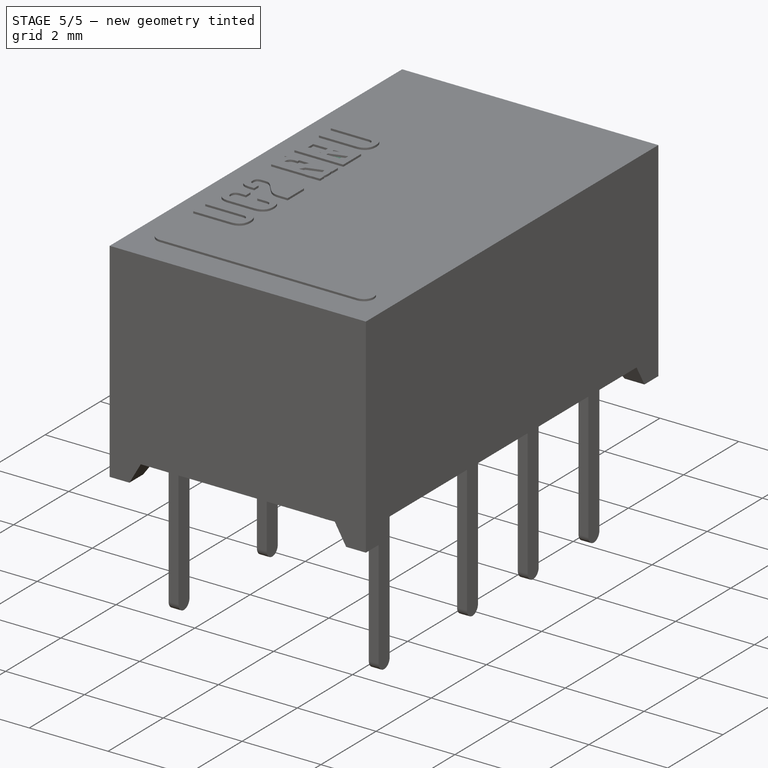
[diagram: stage 5 of 5 — iso view after this stage's code; geometry added in this stage tinted green]
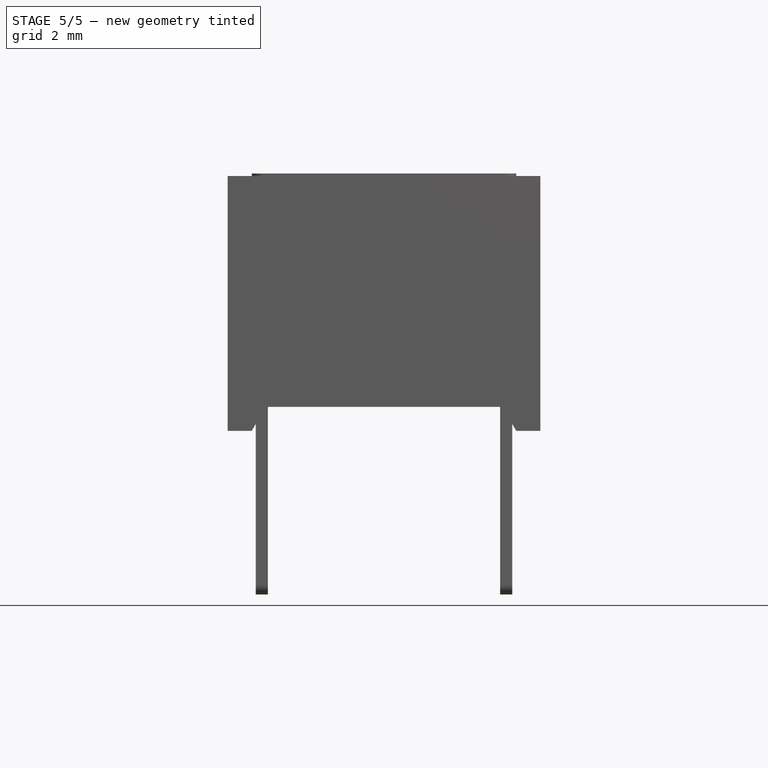
[diagram: stage 5 of 5 — front view after this stage's code; geometry added in this stage tinted green]
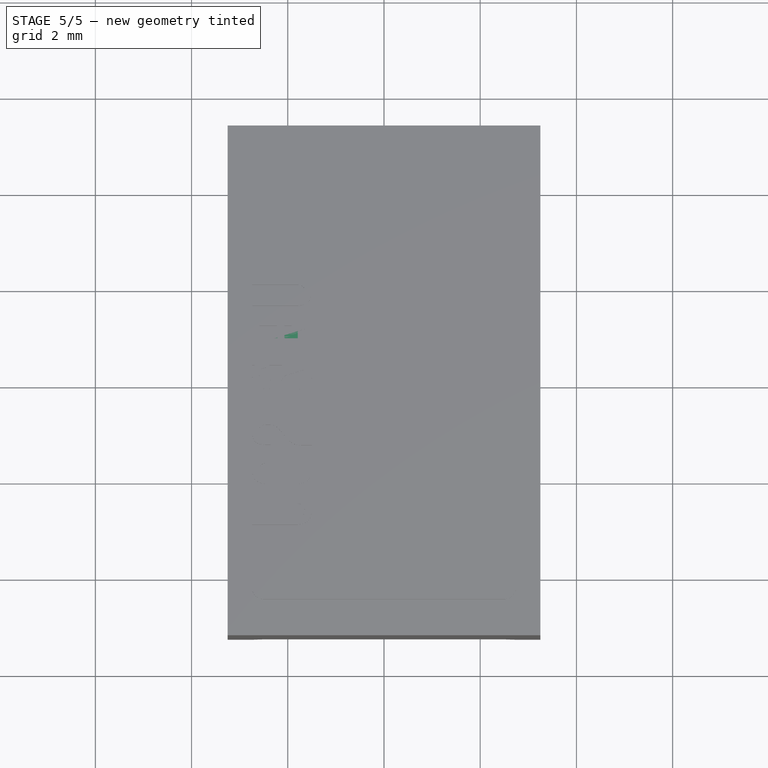
[diagram: stage 5 of 5 — top view after this stage's code; geometry added in this stage tinted green]
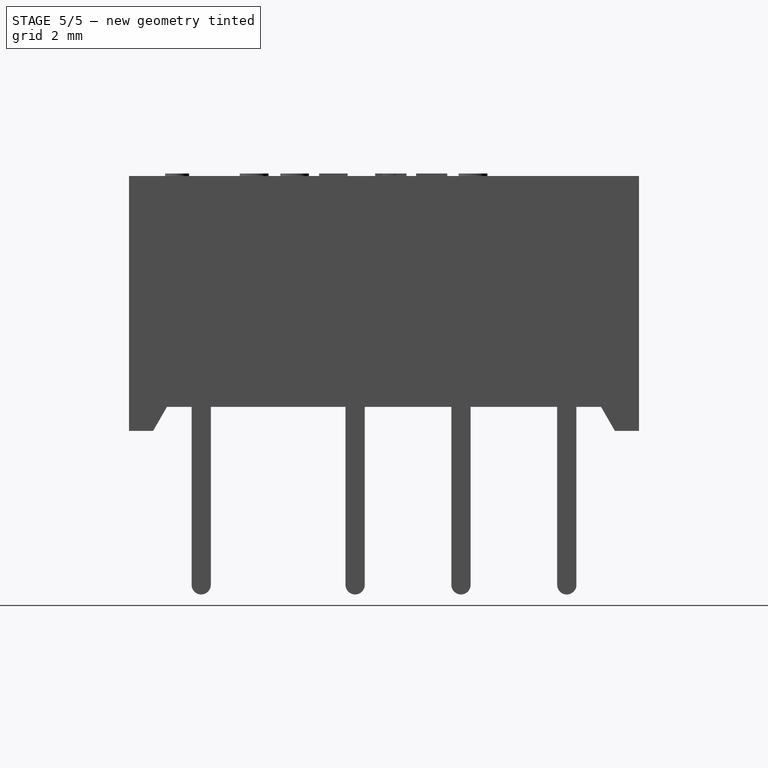
[diagram: stage 5 of 5 — right view after this stage's code; geometry added in this stage tinted green]
FEATURE [Sketcher::SketchObject] Sketch
  MapMode = 5
  Support = -> [XY_Plane]
  sketch-geometry (4):
    g0: LineSegment StartX=3.25 StartY=-5.3 StartZ=0 EndX=-3.25 EndY=-5.3 EndZ=0
    g1: LineSegment StartX=-3.25 StartY=-5.3 StartZ=0 EndX=-3.25 EndY=5.3 EndZ=0
    g2: LineSegment StartX=-3.25 StartY=5.3 StartZ=0 EndX=3.25 EndY=5.3 EndZ=0
    g3: LineSegment StartX=3.25 StartY=5.3 StartZ=0 EndX=3.25 EndY=-5.3 EndZ=0
  constraints (10):
    c: Coincident(g0,g1)
    c: Coincident(g1,g2)
    c: Coincident(g2,g3)
    c: Coincident(g3,g0)
    c: Horizontal(g0)
    c: Vertical(g1)
    c: Symmetric(g1,g2,g-2)
    c: Symmetric(g2,g0,g-1)
    c: DistanceX(g2,g2) = 6.5
    c: DistanceY(g3,g3) = 10.6
FEATURE [PartDesign::Pad] Pad  label="MainPad"
  Length = 5.3
  Length2 = 100
  Profile = -> Sketch
  Type = 0
FEATURE [Sketcher::SketchObject] Sketch003
  ExternalGeometry = -> [Pad]
  MapMode = 5
  Placement = pos=(-3.25,0,0) rot=(0.57735,-0.57735,-0.57735;2.0944rad)
  Support = -> [Pad]
  sketch-geometry (4):
    g0: LineSegment StartX=-4.8 StartY=0 StartZ=0 EndX=-4.51132 EndY=0.5 EndZ=0
    g1: LineSegment StartX=-4.51132 StartY=0.5 StartZ=0 EndX=4.51132 EndY=0.5 EndZ=0
    g2: LineSegment StartX=4.51132 StartY=0.5 StartZ=0 EndX=4.8 EndY=0 EndZ=0
    g3: LineSegment StartX=-4.8 StartY=0 StartZ=0 EndX=4.8 EndY=0 EndZ=0
  constraints (11):
    c: PointOnObject(g0,g-1)
    c: Coincident(g0,g1)
    c: Horizontal(g1)
    c: Coincident(g1,g2)
    c: Coincident(g3,g0)
    c: Coincident(g3,g2)
    c: DistanceY(g0,g0) = 0.5
    c: DistanceX(g-3,g0) = 0.5
    c: Symmetric(g2,g0,g-2)
    c: Angle(g3,g0) = 1.0472
    c: Equal(g2,g0)
FEATURE [PartDesign::Pocket] Pocket  label="BottomPocket"
  BaseFeature = -> Pad
  Length = 5
  Length2 = 100
  Profile = -> Sketch003
  Refine = true
  Type = 1
FEATURE [Sketcher::SketchObject] Sketch015
  ExternalGeometry = -> [Pocket]
  MapMode = 5
  Placement = pos=(0,-5.3,0) rot=(1,0,0;1.5708rad)
  Support = -> [Pocket]
  sketch-geometry (4):
    g0: LineSegment StartX=-2.75 StartY=0 StartZ=0 EndX=-2.46132 EndY=0.5 EndZ=0
    g1: LineSegment StartX=-2.46132 StartY=0.5 StartZ=0 EndX=2.46132 EndY=0.5 EndZ=0
    g2: LineSegment StartX=2.46132 StartY=0.5 StartZ=0 EndX=2.75 EndY=0 EndZ=0
    g3: LineSegment StartX=2.75 StartY=0 StartZ=0 EndX=-2.75 EndY=0 EndZ=0
  constraints (11):
    c: PointOnObject(g0,g-1)
    c: Coincident(g0,g1)
    c: Coincident(g1,g2)
    c: Coincident(g2,g3)
    c: Coincident(g3,g0)
    c: Symmetric(g1,g0,g-2)
    c: Symmetric(g0,g2,g-2)
    c: DistanceX(g-3,g0) = 0.5
    c: Angle(g3,g0) = 1.0472
    c: Equal(g2,g0)
    c: DistanceY(g0,g0) = 0.5
FEATURE [PartDesign::Pocket] Pocket005  label="BottomSidePocket"
  BaseFeature = -> Pocket
  Length = 5
  Length2 = 100
  Profile = -> Sketch015
  Refine = true
  Type = 1
FEATURE [Sketcher::SketchObject] Sketch016
  ExternalGeometry = -> [Pocket005,Sketch015]
  MapMode = 5
  Placement = pos=(0,0,0.5) rot=(1,0,0;3.14159rad)
  Support = -> [Pocket005]
  sketch-geometry (6):
    g0: LineSegment StartX=0 StartY=0 StartZ=0 EndX=-3.05 EndY=0 EndZ=0
    g1: LineSegment StartX=-3.05 StartY=0 StartZ=0 EndX=-3.05 EndY=4.31132 EndZ=0
    g2: LineSegment StartX=-3.05 StartY=4.31132 StartZ=0 EndX=-2.26132 EndY=4.31132 EndZ=0
    g3: LineSegment StartX=-2.26132 StartY=4.31132 StartZ=0 EndX=-2.26132 EndY=5.1 EndZ=0
    g4: LineSegment StartX=-2.26132 StartY=5.1 StartZ=0 EndX=0 EndY=5.1 EndZ=0
    g5: LineSegment StartX=0 StartY=5.1 StartZ=0 EndX=0 EndY=0 EndZ=0
  constraints (17):
    c: Horizontal(g0)
    c: Coincident(g0,g1)
    c: Vertical(g1)
    c: Coincident(g1,g2)
    c: Coincident(g2,g3)
    c: Vertical(g3)
    c: Coincident(g3,g4)
    c: Horizontal(g4)
    c: Coincident(g4,g5)
    c: Coincident(g5,g0)
    c: Vertical(g5)
    c: Horizontal(g2)
    c: Coincident(g0,g-1)
    c: DistanceX(g-4,g0) = 0.2
    c: DistanceY(g4,g-6) = 0.2
    c: DistanceX(g-5,g3) = 0.2
    c: DistanceY(g1,g-4) = 0.2
FEATURE [PartDesign::Pocket] Pocket006
  BaseFeature = -> Pocket005
  Length = 0.1
  Length2 = 100
  Profile = -> Sketch016
  Type = 0
FEATURE [PartDesign::Mirrored] Mirrored
  MirrorPlane = -> YZ_Plane
FEATURE [PartDesign::Mirrored] Mirrored001
  MirrorPlane = -> XZ_Plane
FEATURE [PartDesign::MultiTransform] MultiTransform
  BaseFeature = -> Pocket006
  Originals = -> [Pocket006]
  Refine = true
  Transformations = -> [Mirrored,Mirrored001]
FEATURE [Sketcher::SketchObject] Sketch017
  MapMode = 5
  Placement = pos=(-1e-16,-1e-16,0.6) rot=(1,0,0;3.14159rad)
  Support = -> [MultiTransform]
  sketch-geometry (8):
    g0: LineSegment StartX=-1.13646 StartY=2.94894 StartZ=0 EndX=1.09204 EndY=2.88853 EndZ=0
    g1: LineSegment StartX=1.48768 StartY=2.48729 StartZ=0 EndX=1.5531 EndY=-2.52307 EndZ=0
    g2: LineSegment StartX=1.14644 StartY=-2.93509 StartZ=0 EndX=-1.14748 EndY=-2.93509 EndZ=0
    g3: LineSegment StartX=-1.55418 StartY=-2.52838 StartZ=0 EndX=-1.55418 EndY=2.54239 EndZ=0
    g4: ArcOfCircle CenterX=1.08102 CenterY=2.48198 CenterZ=0 NormalX=0 NormalY=0 NormalZ=1 AngleXU=0 Radius=0.406703 StartAngle=0.013056 EndAngle=1.54369
    g5: ArcOfCircle CenterX=-1.14748 CenterY=2.54239 CenterZ=0 NormalX=0 NormalY=0 NormalZ=1 AngleXU=0 Radius=0.406703 StartAngle=1.54369 EndAngle=3.14159
    g6: ArcOfCircle CenterX=-1.14748 CenterY=-2.52838 CenterZ=0 NormalX=0 NormalY=0 NormalZ=1 AngleXU=0 Radius=0.406703 StartAngle=3.14159 EndAngle=4.71239
    g7: ArcOfCircle CenterX=1.14644 CenterY=-2.52838 CenterZ=0 NormalX=0 NormalY=0 NormalZ=1 AngleXU=0 Radius=0.406703 StartAngle=4.71239 EndAngle=6.29624
  constraints (13):
    c: Horizontal(g2)
    c: Vertical(g3)
    c: Tangent(g0,g4) = 1.5708
    c: Tangent(g1,g4) = 1.5708
    c: Tangent(g0,g5) = 1.5708
    c: Tangent(g3,g5) = 1.5708
    c: Tangent(g2,g6) = 1.5708
    c: Tangent(g3,g6) = 1.5708
    c: Tangent(g1,g7) = 1.5708
    c: Tangent(g2,g7) = 1.5708
    c: Equal(g4,g5)
    c: Equal(g5,g6)
    c: Equal(g6,g7)
FEATURE [PartDesign::Pad] Pad011
  BaseFeature = -> MultiTransform
  Length = 0.05
  Length2 = 100
  Profile = -> Sketch017
  Type = 0
FEATURE [Sketcher::SketchObject] Sketch018
  ExternalGeometry = -> [Pad011]
  MapMode = 5
  Placement = pos=(0,0,5.3) rot=(0,0,1;0rad)
  Support = -> [Pad011]
  sketch-geometry (4):
    g0: ArcOfCircle CenterX=-2.5 CenterY=-4.3 CenterZ=0 NormalX=0 NormalY=0 NormalZ=1 AngleXU=0 Radius=0.25 StartAngle=1.5708 EndAngle=4.71239
    g1: ArcOfCircle CenterX=2.5 CenterY=-4.3 CenterZ=0 NormalX=0 NormalY=0 NormalZ=1 AngleXU=0 Radius=0.25 StartAngle=4.71239 EndAngle=7.85398
    g2: LineSegment StartX=-2.5 StartY=-4.55 StartZ=0 EndX=2.5 EndY=-4.55 EndZ=0
    g3: LineSegment StartX=-2.5 StartY=-4.05 StartZ=0 EndX=2.5 EndY=-4.05 EndZ=0
  constraints (9):
    c: Tangent(g0,g3) = 1.5708
    c: Tangent(g0,g2) = -1.5708
    c: Tangent(g2,g1) = -1.5708
    c: Tangent(g3,g1) = 1.5708
    c: Horizontal(g2)
    c: Symmetric(g0,g1,g-2)
    c: DistanceY(g1,g1) = 0.5
    c: DistanceY(g-3,g1) = 1
    c: DistanceX(g1,g-3) = 0.75
FEATURE [PartDesign::Pad] Pad012
  BaseFeature = -> Pad011
  Length = 0.05
  Length2 = 100
  Profile = -> Sketch018
  Type = 0
FEATURE [Part::Part2DObjectPython] ShapeString  # Draft 2D object (typed FeaturePython)
  AttachmentOffset = pos=(-1,-1,0) rot=(0,0,1;-1.5708rad)
  FontFile = <userpath>/Desktop/GitHub/freecad-projects/00-fonts/coolvetica condensed rg.ttf
  MapMode = 6
  Placement = pos=(-1.5,-3.05,5.3) rot=(0,0,-1;4.71239rad)
  Size = 0.75
  String = UC2 NU
  Support = -> [Pad012]
  Tracking = 0.125
FEATURE [PartDesign::Pad] Pad007  label="ShapeStringPad"
  BaseFeature = -> Pad012
  Length = 0.05
  Length2 = 100
  Profile = -> ShapeString
  Type = 0
FEATURE [PartDesign::Body] Body  label="UC2-NU_Body"
  Group = -> [Sketch,Pad,Sketch003,Pocket,Sketch015,Pocket005,ShapeString,Sketch016,Pocket006,MultiTransform,Mirrored,Mirrored001,Sketch017,Pad011,Sketch018,Pad012,Pad007]
  Origin = -> Origin
  Tip = -> Pad007
FEATURE [PartDesign::FeatureBase] Clone
  BaseFeature = -> Pad005
  Placement = pos=(2.54,-1e-15,1e-15) rot=(0.57735,0.57735,0.57735;2.0944rad)
FEATURE [Part::MultiFuse] Fusion  label="UC2-NU_Pins"
  Shapes = -> [Array001,Body002,Array,Body001]
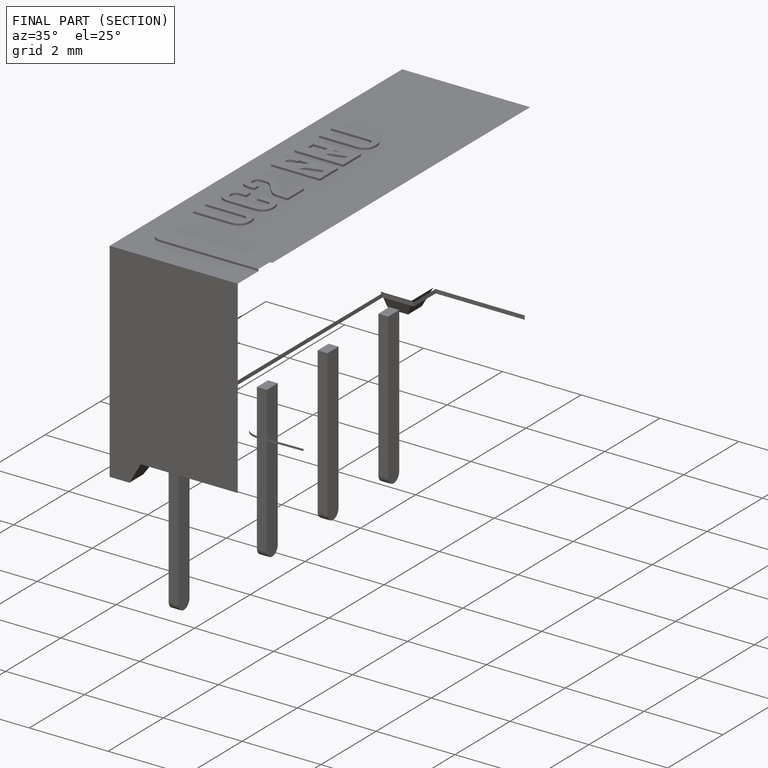
[diagram: finished part — half-section view (interior)]
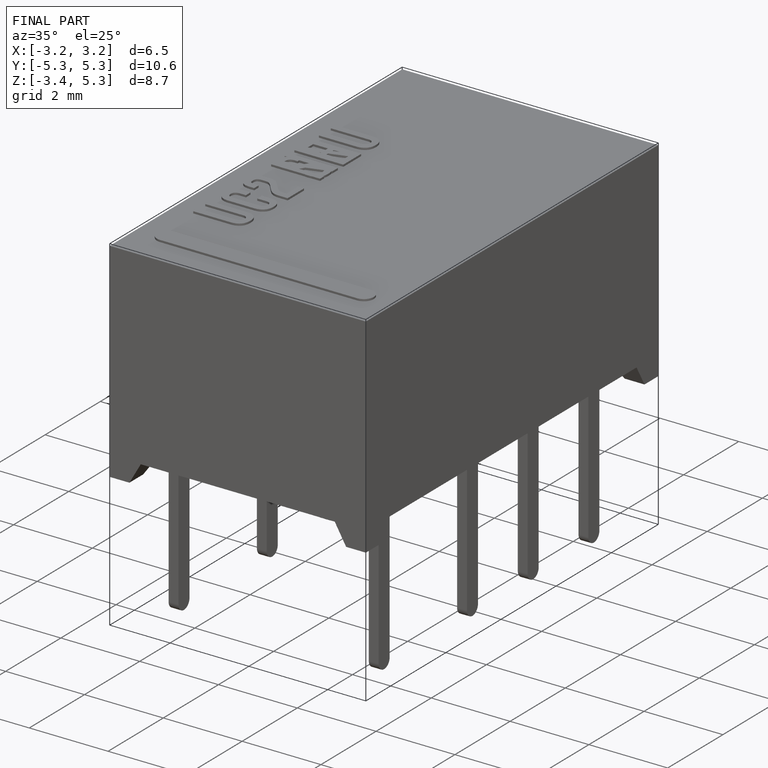
[diagram: finished part — iso view with bounding-box wireframe]
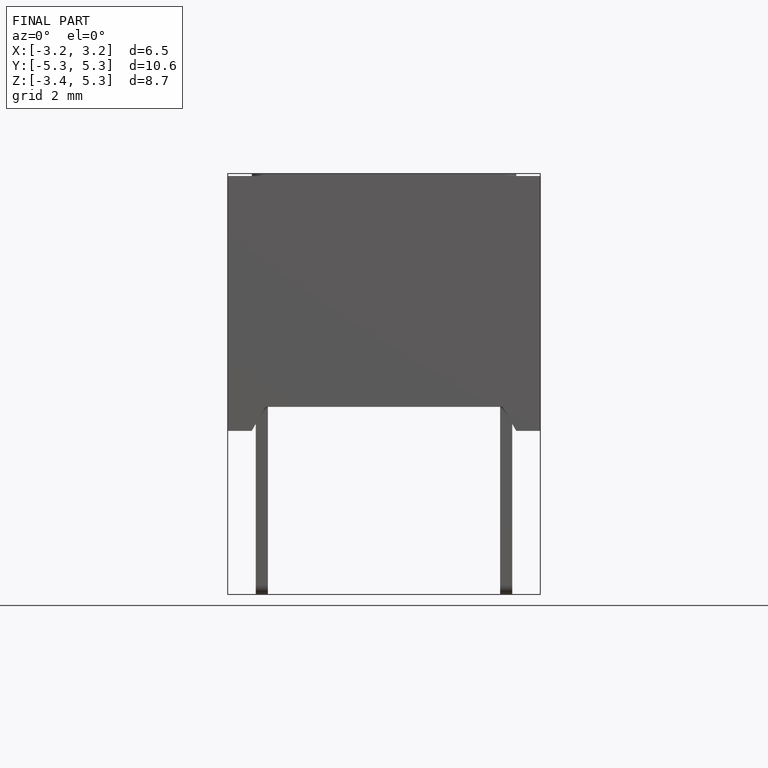
[diagram: finished part — front view with bounding-box wireframe]
